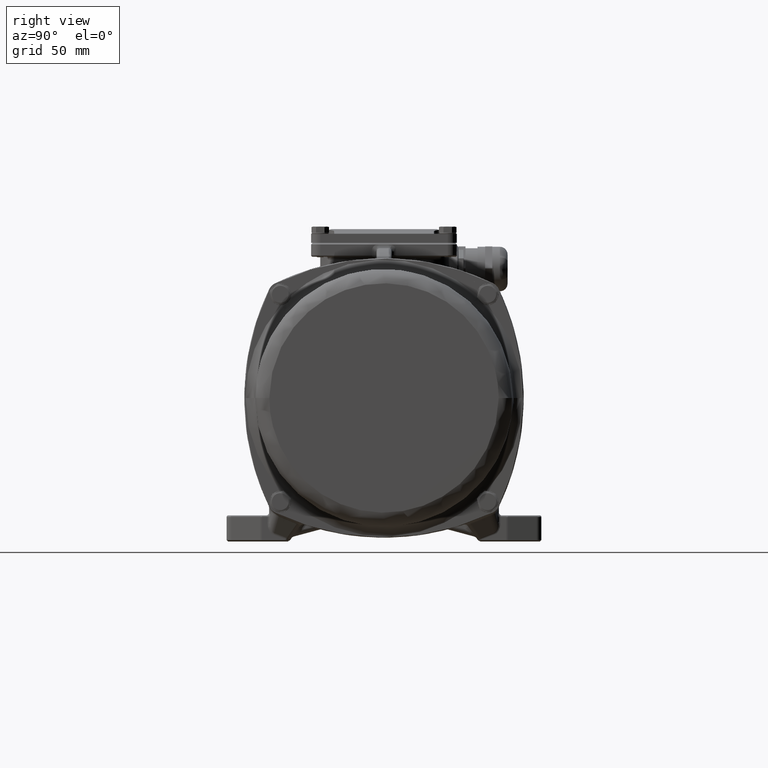
[diagram: clean part render]
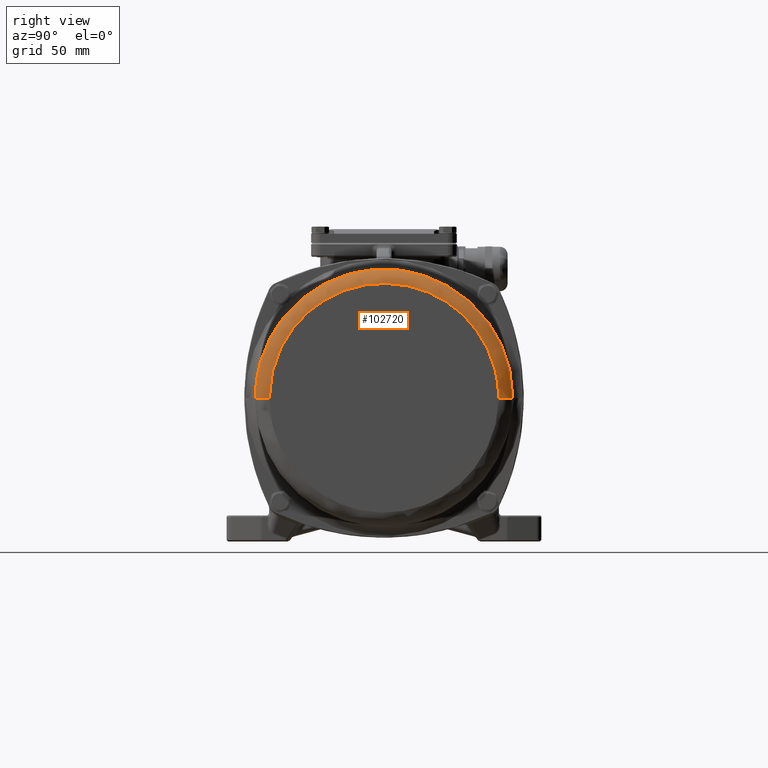
[diagram: same view with one face highlighted and labeled with its STEP entity id]
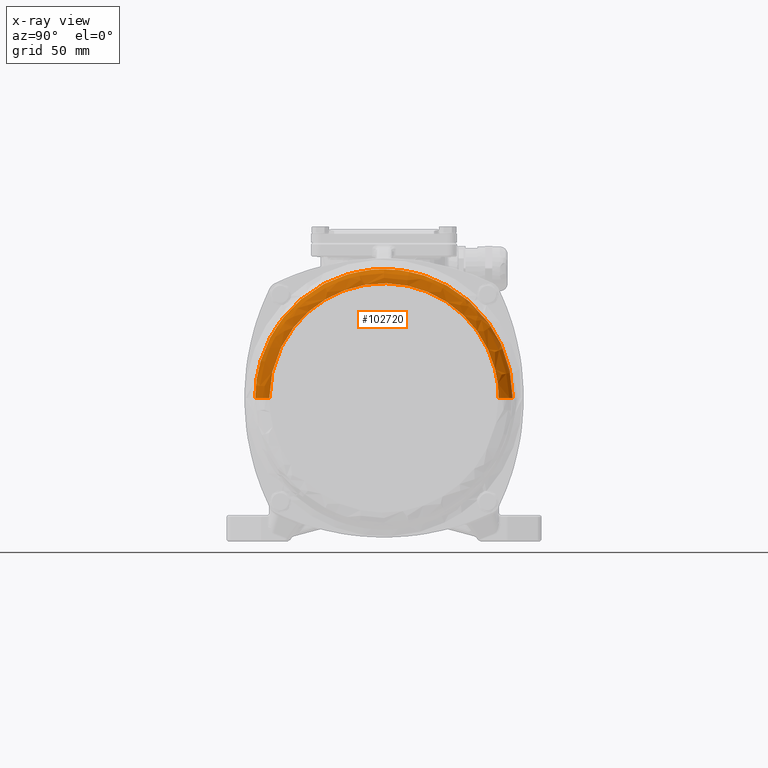
[diagram: x-ray of the same camera — body ghosted, the highlighted face saturated]
A machine part, right view. The second image highlights one B-rep face of the part: STEP entity #102720.
The next image is the same camera in x-ray: the body ghosted, the highlighted face saturated — about 0% of this face is hidden behind the body in this view.
In plain terms, the highlighted face is a freeform B-spline surface patch.
Its self-contained STEP definition (entity closure, byte-faithful):
#36242 = B_SPLINE_CURVE_WITH_KNOTS ( 'NONE', 3,
 ( #104600, #104643, #104645, #104648, #104651, #104653, #104655, #104657, #104659, #104662, #104664, #104667, #104669, #104671, #104674, #104677, #104679, #104682, #104683, #104686, #104689, #104691, #104694, #104697, #104698, #104701, #104703 ),
 .UNSPECIFIED., .F., .F.,
 ( 4, 1, 1, 1, 1, 1, 1, 1, 1, 1, 1, 1, 1, 1, 1, 1, 1, 1, 1, 1, 1, 1, 1, 1, 4 ),
 ( 0.0000000000000000000, 0.03126884422834069800, 0.06253768845668139500, 0.09380653268502210700, 0.1250753769133627900, 0.1875377359283236200, 0.2500000949432844600, 0.2812689391716251500, 0.3125377833999658500, 0.3438066276283065500, 0.3750754718566472500, 0.4375378308716088600, 0.5000001898865673600, 0.5624625489015296900, 0.6249249079164921300, 0.6561937521448328900, 0.6874625963731735300, 0.7187314406015142800, 0.7500002848298550400, 0.8124626438448133700, 0.8749250028597758100, 0.9061938470881165700, 0.9374626913164573200, 0.9687315355447979600, 1.000000000000000000 ),
 .UNSPECIFIED. ) ;
#36304 = B_SPLINE_CURVE_WITH_KNOTS ( 'NONE', 3,
 ( #107411, #107431, #107434, #107438, #107441, #107445, #107449, #107453, #107457, #107461, #107464 ),
 .UNSPECIFIED., .F., .F.,
 ( 4, 1, 1, 1, 1, 1, 1, 1, 4 ),
 ( 0.0000000000000000000, 1.803515344673401800, 3.607030689346700100, 5.410546034020072200, 7.214061378693431300, 9.017576723366771000, 10.82109206804012100, 12.62460741271345000, 14.42812275738680100 ),
 .UNSPECIFIED. ) ;
#36305 = B_SPLINE_CURVE_WITH_KNOTS ( 'NONE', 3,
 ( #107389, #107475, #107479, #107483, #107486, #107489, #107493, #107497, #107501, #107505, #107508, #107512, #107516, #107520, #107524, #107528, #107531, #107535, #107539, #107543, #107547, #107551, #107554, #107558, #107562, #107566, #107570 ),
 .UNSPECIFIED., .F., .F.,
 ( 4, 1, 1, 1, 1, 1, 1, 1, 1, 1, 1, 1, 1, 1, 1, 1, 1, 1, 1, 1, 1, 1, 1, 1, 4 ),
 ( 0.0000000000000000000, 0.03126846445520033200, 0.06253730868354102900, 0.09380615291188182400, 0.1250749971402226300, 0.1875373561551851000, 0.2499997151701436600, 0.2812685593984844400, 0.3125374036268252500, 0.3438062478551659500, 0.3750750920835067600, 0.4375374510984692500, 0.4999998101134317500, 0.5624621691283904200, 0.6249245281433520900, 0.6561933723716928400, 0.6874622166000335900, 0.7187310608283742400, 0.7499999050567151000, 0.8124622640716761000, 0.8749246230866369900, 0.9061934673149777400, 0.9374623115433184900, 0.9687311557716592500, 1.000000000000000000 ),
 .UNSPECIFIED. ) ;
#36310 = B_SPLINE_CURVE_WITH_KNOTS ( 'NONE', 3,
 ( #107980, #108017, #108019, #108023, #108026, #108029, #108033, #108036, #108038, #108042, #108046 ),
 .UNSPECIFIED., .F., .F.,
 ( 4, 1, 1, 1, 1, 1, 1, 1, 4 ),
 ( 0.0000000000000000000, 1.803515344673350100, 3.607030689346679700, 5.410546034020028600, 7.214061378693369200, 9.017576723366728300, 10.82109206804010000, 12.62460741271339900, 14.42812275738680100 ),
 .UNSPECIFIED. ) ;
#46836 = CARTESIAN_POINT ( 'NONE',  ( 174.7999849319460000, 83.89999998929418700, -68.99999998669859700 ) ) ;
#46914 = CARTESIAN_POINT ( 'NONE',  ( 174.7999849319460000, -83.90000001070589500, -69.00000001330140300 ) ) ;
#48359 = CARTESIAN_POINT ( 'NONE',  ( 183.9999847412110200, -74.70000020144070200, -69.00000001184281500 ) ) ;
#48360 = CARTESIAN_POINT ( 'NONE',  ( 183.9999847412110200, 74.70000018002899400, -68.99999998815719900 ) ) ;
#61262 = FACE_OUTER_BOUND ( 'NONE', #211268, .T. ) ;
#102720 = ADVANCED_FACE ( 'NONE', ( #61262 ), #193420, .T. ) ;
#104600 = CARTESIAN_POINT ( 'NONE',  ( 174.7999849319460000, 83.89999998929418700, -68.99999998669859700 ) ) ;
#104643 = CARTESIAN_POINT ( 'NONE',  ( 174.7999849319460000, 83.89999998885899400, -66.25548036223979400 ) ) ;
#104645 = CARTESIAN_POINT ( 'NONE',  ( 174.7999849319460000, 83.63021214230180100, -60.76259641010410200 ) ) ;
#104648 = CARTESIAN_POINT ( 'NONE',  ( 174.7999849319460000, 82.42024701555959600, -52.60584484023790700 ) ) ;
#104651 = CARTESIAN_POINT ( 'NONE',  ( 174.7999849319460000, 80.41610255475271200, -44.60551926830329700 ) ) ;
#104653 = CARTESIAN_POINT ( 'NONE',  ( 174.7999849319460000, 76.71565098065210000, -34.26135087482389700 ) ) ;
#104655 = CARTESIAN_POINT ( 'NONE',  ( 174.7999849319460000, 70.21103537842030600, -22.08644999096029700 ) ) ;
#104657 = CARTESIAN_POINT ( 'NONE',  ( 174.7999849319460000, 61.45214947210530500, -11.41787163159760100 ) ) ;
#104659 = CARTESIAN_POINT ( 'NONE',  ( 174.7999849319460000, 53.31137346714750400, -4.040528047517639700 ) ) ;
#104662 = CARTESIAN_POINT ( 'NONE',  ( 174.7999849319460000, 46.68731989779310300, 0.8725516386980409800 ) ) ;
#104664 = CARTESIAN_POINT ( 'NONE',  ( 174.7999849319460000, 39.61324621258550100, 5.112228539553821200 ) ) ;
#104667 = CARTESIAN_POINT ( 'NONE',  ( 174.7999849319460000, 29.68240998722100300, 9.810153936722098700 ) ) ;
#104669 = CARTESIAN_POINT ( 'NONE',  ( 174.7999849319460000, 16.47189252303539700, 13.81939745304269900 ) ) ;
#104671 = CARTESIAN_POINT ( 'NONE',  ( 174.7999849319460000, -5.034608625997799700E-005, 15.44030618296869900 ) ) ;
#104674 = CARTESIAN_POINT ( 'NONE',  ( 174.7999849319460000, -16.47199128272900000, 13.81937781499310000 ) ) ;
#104677 = CARTESIAN_POINT ( 'NONE',  ( 174.7999849319460000, -29.68250396703640000, 9.810118548935639300 ) ) ;
#104679 = CARTESIAN_POINT ( 'NONE',  ( 174.7999849319460000, -39.61333459146990100, 5.112181312106860000 ) ) ;
#104682 = CARTESIAN_POINT ( 'NONE',  ( 174.7999849319460000, -46.68740322207810300, 0.8724959774573670700 ) ) ;
#104683 = CARTESIAN_POINT ( 'NONE',  ( 174.7999849319460000, -53.31145093399440100, -4.040591606032069900 ) ) ;
#104686 = CARTESIAN_POINT ( 'NONE',  ( 174.7999849319460000, -61.45221814358770000, -11.41794489563910100 ) ) ;
#104689 = CARTESIAN_POINT ( 'NONE',  ( 174.7999849319460000, -70.21109133068739500, -22.08653369744450100 ) ) ;
#104691 = CARTESIAN_POINT ( 'NONE',  ( 174.7999849319460000, -76.71569241784968100, -34.26144233618139600 ) ) ;
#104694 = CARTESIAN_POINT ( 'NONE',  ( 174.7999849319460000, -80.41613165950408900, -44.60561514137680200 ) ) ;
#104697 = CARTESIAN_POINT ( 'NONE',  ( 174.7999849319460000, -82.42026658222410200, -52.60594310267119100 ) ) ;
#104698 = CARTESIAN_POINT ( 'NONE',  ( 174.7999849319460000, -83.63021708591610100, -60.76266309267897700 ) ) ;
#104701 = CARTESIAN_POINT ( 'NONE',  ( 174.7999849319460000, -83.90000000563486500, -66.25551367547728900 ) ) ;
#104703 = CARTESIAN_POINT ( 'NONE',  ( 174.7999849319460000, -83.90000001070589500, -69.00000001330140300 ) ) ;
#107389 = CARTESIAN_POINT ( 'NONE',  ( 183.9999847412110200, -74.70000020144070200, -69.00000001184281500 ) ) ;
#107411 = CARTESIAN_POINT ( 'NONE',  ( 174.7999849319460000, 83.89999998929418700, -68.99999998669859700 ) ) ;
#107431 = CARTESIAN_POINT ( 'NONE',  ( 175.4011567135040100, 83.89999998929408800, -68.99999998669859700 ) ) ;
#107434 = CARTESIAN_POINT ( 'NONE',  ( 176.6068320595450100, 83.78139020287639500, -68.99999998671739800 ) ) ;
#107438 = CARTESIAN_POINT ( 'NONE',  ( 178.3432478650399800, 83.25448174200398900, -68.99999998680100100 ) ) ;
#107441 = CARTESIAN_POINT ( 'NONE',  ( 179.9442111005760100, 82.39883304660820300, -68.99999998693660100 ) ) ;
#107445 = CARTESIAN_POINT ( 'NONE',  ( 181.3472935512130000, 81.24730879929610700, -68.99999998711919600 ) ) ;
#107449 = CARTESIAN_POINT ( 'NONE',  ( 182.4988177985250100, 79.84422634865920500, -68.99999998734161000 ) ) ;
#107453 = CARTESIAN_POINT ( 'NONE',  ( 183.3544664939210000, 78.24326311312340500, -68.99999998759550100 ) ) ;
#107457 = CARTESIAN_POINT ( 'NONE',  ( 183.8813749547930200, 76.50684730762779400, -68.99999998787069400 ) ) ;
#107461 = CARTESIAN_POINT ( 'NONE',  ( 183.9999847412110200, 75.30117196158681700, -68.99999998806190100 ) ) ;
#107464 = CARTESIAN_POINT ( 'NONE',  ( 183.9999847412110200, 74.70000018002899400, -68.99999998815719900 ) ) ;
#107475 = CARTESIAN_POINT ( 'NONE',  ( 183.9999847412110200, -74.70000019692574300, -66.55645853438211600 ) ) ;
#107479 = CARTESIAN_POINT ( 'NONE',  ( 183.9999847412110200, -74.45980014740911200, -61.66592290169204200 ) ) ;
#107483 = CARTESIAN_POINT ( 'NONE',  ( 183.9999847412110200, -73.38252597748569900, -54.40362272518019900 ) ) ;
#107486 = CARTESIAN_POINT ( 'NONE',  ( 183.9999847412110200, -71.59815316330880800, -47.28056551141820300 ) ) ;
#107489 = CARTESIAN_POINT ( 'NONE',  ( 183.9999847412110200, -68.30348317454381400, -38.07067623226340200 ) ) ;
#107493 = CARTESIAN_POINT ( 'NONE',  ( 183.9999847412110200, -62.51213987952980500, -27.23079926401749900 ) ) ;
#107497 = CARTESIAN_POINT ( 'NONE',  ( 183.9999847412110200, -54.71371522223569900, -17.73206761288840000 ) ) ;
#107501 = CARTESIAN_POINT ( 'NONE',  ( 183.9999847412110200, -47.46561853440080400, -11.16367318927979800 ) ) ;
#107505 = CARTESIAN_POINT ( 'NONE',  ( 183.9999847412110200, -41.56792645640820200, -6.789327022131280900 ) ) ;
#107508 = CARTESIAN_POINT ( 'NONE',  ( 183.9999847412110200, -35.26956021021380400, -3.014541619187590000 ) ) ;
#107512 = CARTESIAN_POINT ( 'NONE',  ( 183.9999847412110200, -26.42768834442909700, 1.168246372316190000 ) ) ;
#107516 = CARTESIAN_POINT ( 'NONE',  ( 183.9999847412110200, -14.66576581716490100, 4.737872927014610300 ) ) ;
#107520 = CARTESIAN_POINT ( 'NONE',  ( 183.9999847412110200, -4.482659293625349600E-005, 6.181059451412090200 ) ) ;
#107524 = CARTESIAN_POINT ( 'NONE',  ( 183.9999847412110200, 14.66567788455319900, 4.737890411666679600 ) ) ;
#107528 = CARTESIAN_POINT ( 'NONE',  ( 183.9999847412110200, 26.42760466756120200, 1.168277879678020000 ) ) ;
#107531 = CARTESIAN_POINT ( 'NONE',  ( 183.9999847412110200, 35.26948152011039600, -3.014499570435579900 ) ) ;
#107535 = CARTESIAN_POINT ( 'NONE',  ( 183.9999847412110200, 41.56785226664539600, -6.789277464387669900 ) ) ;
#107539 = CARTESIAN_POINT ( 'NONE',  ( 183.9999847412110200, 47.46554955978260200, -11.16361660023280000 ) ) ;
#107543 = CARTESIAN_POINT ( 'NONE',  ( 183.9999847412110200, 54.71365407853200200, -17.73200238256760000 ) ) ;
#107547 = CARTESIAN_POINT ( 'NONE',  ( 183.9999847412110200, 62.51209006032421200, -27.23072473631329900 ) ) ;
#107551 = CARTESIAN_POINT ( 'NONE',  ( 183.9999847412110200, 68.30344627876721100, -38.07059480004139800 ) ) ;
#107554 = CARTESIAN_POINT ( 'NONE',  ( 183.9999847412110200, 71.59812724767209600, -47.28048015124409900 ) ) ;
#107558 = CARTESIAN_POINT ( 'NONE',  ( 183.9999847412110200, 73.38250855404309900, -54.40353523764999700 ) ) ;
#107562 = CARTESIAN_POINT ( 'NONE',  ( 183.9999847412110200, 74.45979574353570700, -61.66586353115150100 ) ) ;
#107566 = CARTESIAN_POINT ( 'NONE',  ( 183.9999847412110200, 74.70000017964159200, -66.55642887408630800 ) ) ;
#107570 = CARTESIAN_POINT ( 'NONE',  ( 183.9999847412110200, 74.70000018002899400, -68.99999998815719900 ) ) ;
#107980 = CARTESIAN_POINT ( 'NONE',  ( 183.9999847412110200, -74.70000020144070200, -69.00000001184281500 ) ) ;
#108017 = CARTESIAN_POINT ( 'NONE',  ( 183.9999847412110200, -75.30117198299849700, -69.00000001193811300 ) ) ;
#108019 = CARTESIAN_POINT ( 'NONE',  ( 183.8813749547930200, -76.50684732903950200, -69.00000001212920600 ) ) ;
#108023 = CARTESIAN_POINT ( 'NONE',  ( 183.3544664939210000, -78.24326313453509800, -69.00000001240461200 ) ) ;
#108026 = CARTESIAN_POINT ( 'NONE',  ( 182.4988177985250100, -79.84422637007089900, -69.00000001265830500 ) ) ;
#108029 = CARTESIAN_POINT ( 'NONE',  ( 181.3472935512130000, -81.24730882070780100, -69.00000001288080400 ) ) ;
#108033 = CARTESIAN_POINT ( 'NONE',  ( 179.9442111005760100, -82.39883306801989700, -69.00000001306339900 ) ) ;
#108036 = CARTESIAN_POINT ( 'NONE',  ( 178.3432478650399800, -83.25448176341559800, -69.00000001319899900 ) ) ;
#108038 = CARTESIAN_POINT ( 'NONE',  ( 176.6068320595450100, -83.78139022428800300, -69.00000001328250200 ) ) ;
#108042 = CARTESIAN_POINT ( 'NONE',  ( 175.4011567135040100, -83.90000001070579600, -69.00000001330130300 ) ) ;
#108046 = CARTESIAN_POINT ( 'NONE',  ( 174.7999849319460000, -83.90000001070589500, -69.00000001330140300 ) ) ;
#136558 = VERTEX_POINT ( 'NONE', #46836 ) ;
#136601 = VERTEX_POINT ( 'NONE', #46914 ) ;
#155433 = VERTEX_POINT ( 'NONE', #48359 ) ;
#155436 = VERTEX_POINT ( 'NONE', #48360 ) ;
#193420 = B_SPLINE_SURFACE_WITH_KNOTS ( 'NONE', 3, 3, ( 
 ( #202948, #202840, #202936, #202951, #202953, #202955, #202957, #202959, #202961, #202963, #202965, #202967, #202969, #202971, #202973, #202975, #202977, #202979, #202981, #202983, #202985, #202987, #202989, #202991, #202993, #202995, #202997 ),
 ( #202999, #203001, #203003, #203005, #203007, #203009, #203011, #203013, #203015, #203017, #203019, #203021, #203022, #203024, #203026, #203028, #203030, #203032, #203034, #203036, #203038, #203040, #203042, #203044, #203046, #203048, #203050 ),
 ( #203052, #203054, #203056, #203058, #203060, #203062, #203064, #203066, #203068, #203070, #203072, #203074, #203076, #203078, #203080, #203082, #203084, #203086, #203088, #203090, #203092, #203094, #203096, #203097, #203099, #203101, #203103 ),
 ( #203105, #203107, #203109, #203111, #203113, #203115, #203117, #203119, #203121, #203123, #203125, #203127, #203129, #203131, #203133, #203135, #203137, #203139, #203141, #203143, #203145, #203147, #203149, #203151, #203153, #203155, #203157 ),
 ( #203159, #203161, #203163, #203165, #203167, #203169, #203171, #203173, #203175, #203177, #203179, #203181, #203183, #203185, #203187, #203189, #203191, #203193, #203195, #203197, #203199, #203201, #203203, #203205, #203207, #203209, #203211 ),
 ( #203213, #203215, #203217, #203219, #203221, #203223, #203225, #203227, #203229, #203231, #203233, #203235, #203237, #203239, #203241, #203243, #203245, #203247, #203249, #203251, #203253, #203255, #203257, #203259, #203261, #203263, #203265 ),
 ( #203267, #203269, #203271, #203273, #203275, #203277, #203279, #203281, #203283, #203285, #203287, #203289, #203291, #203293, #203295, #203297, #203299, #203301, #203303, #203305, #203307, #203309, #203311, #203313, #203315, #203317, #203319 ),
 ( #203321, #203323, #203325, #203327, #203329, #203331, #203333, #203335, #203337, #203339, #203341, #203343, #203345, #203346, #203348, #203350, #203352, #203353, #203355, #203357, #203359, #203361, #203363, #203365, #203367, #203369, #203371 ),
 ( #203373, #203375, #203377, #203379, #203381, #203383, #203385, #203387, #203389, #203391, #203393, #203395, #203397, #203399, #203401, #203403, #203405, #203407, #203409, #203411, #203413, #203415, #203417, #203419, #203421, #203423, #203425 ),
 ( #203427, #203429, #203430, #203431, #203433, #203435, #203437, #203439, #203441, #203443, #203445, #203447, #203449, #203451, #203453, #203455, #203457, #203459, #203461, #203463, #203465, #203467, #203469, #203471, #203473, #203475, #203477 ),
 ( #203479, #203481, #203483, #203485, #203487, #203489, #203491, #203493, #203495, #203497, #203499, #203501, #203503, #203505, #203507, #203509, #203511, #203512, #203514, #203516, #203518, #203520, #203522, #203524, #203526, #203528, #203530 ) ),
 .UNSPECIFIED., .F., .F., .F.,
 ( 4, 1, 1, 1, 1, 1, 1, 1, 4 ),
 ( 4, 1, 1, 1, 1, 1, 1, 1, 1, 1, 1, 1, 1, 1, 1, 1, 1, 1, 1, 1, 1, 1, 1, 1, 4 ),
 ( 0.0000000000000000000, 1.803515344673340100, 3.607030689346679700, 5.410546034020029500, 7.214061378693359400, 9.017576723366719400, 10.82109206804010000, 12.62460741271339900, 14.42812275738669900 ),
 ( 0.0000000000000000000, 7.890135011254999500, 15.78027002250999900, 23.67040503376500000, 31.56054004501999800, 47.32180202677359700, 63.08306400852720200, 70.97319901978220000, 78.86333403103719800, 86.75346904229219500, 94.64360405354719300, 110.4048660353010000, 126.1661280170540100, 141.9273899988080000, 157.6886519805619900, 165.5787869918170000, 173.4689220030719800, 181.3590570143269900, 189.2491920255820000, 205.0104540073350000, 220.7717159890889900, 228.6618510003440000, 236.5519860115990100, 244.4421210228540000, 252.3322560341090100 ),
 .UNSPECIFIED. ) ;
#202840 = CARTESIAN_POINT ( 'NONE',  ( 183.9999847412110200, 74.70000017964159200, -66.55642887408630800 ) ) ;
#202936 = CARTESIAN_POINT ( 'NONE',  ( 183.9999847412110200, 74.45979574353570700, -61.66586353115150100 ) ) ;
#202948 = CARTESIAN_POINT ( 'NONE',  ( 183.9999847412110200, 74.70000018002899400, -68.99999998815719900 ) ) ;
#202951 = CARTESIAN_POINT ( 'NONE',  ( 183.9999847412110200, 73.38250855404309900, -54.40353523764999700 ) ) ;
#202953 = CARTESIAN_POINT ( 'NONE',  ( 183.9999847412110200, 71.59812724767209600, -47.28048015124409900 ) ) ;
#202955 = CARTESIAN_POINT ( 'NONE',  ( 183.9999847412110200, 68.30344627876721100, -38.07059480004139800 ) ) ;
#202957 = CARTESIAN_POINT ( 'NONE',  ( 183.9999847412110200, 62.51209006032421200, -27.23072473631329900 ) ) ;
#202959 = CARTESIAN_POINT ( 'NONE',  ( 183.9999847412110200, 54.71365407853200200, -17.73200238256760000 ) ) ;
#202961 = CARTESIAN_POINT ( 'NONE',  ( 183.9999847412110200, 47.46554955978260200, -11.16361660023280000 ) ) ;
#202963 = CARTESIAN_POINT ( 'NONE',  ( 183.9999847412110200, 41.56785226664539600, -6.789277464387669900 ) ) ;
#202965 = CARTESIAN_POINT ( 'NONE',  ( 183.9999847412110200, 35.26948152011039600, -3.014499570435579900 ) ) ;
#202967 = CARTESIAN_POINT ( 'NONE',  ( 183.9999847412110200, 26.42760466756120200, 1.168277879678020000 ) ) ;
#202969 = CARTESIAN_POINT ( 'NONE',  ( 183.9999847412110200, 14.66567788455319900, 4.737890411666679600 ) ) ;
#202971 = CARTESIAN_POINT ( 'NONE',  ( 183.9999847412110200, -4.482659293625349600E-005, 6.181059451412090200 ) ) ;
#202973 = CARTESIAN_POINT ( 'NONE',  ( 183.9999847412110200, -14.66576581716490100, 4.737872927014610300 ) ) ;
#202975 = CARTESIAN_POINT ( 'NONE',  ( 183.9999847412110200, -26.42768834442909700, 1.168246372316190000 ) ) ;
#202977 = CARTESIAN_POINT ( 'NONE',  ( 183.9999847412110200, -35.26956021021380400, -3.014541619187590000 ) ) ;
#202979 = CARTESIAN_POINT ( 'NONE',  ( 183.9999847412110200, -41.56792645640820200, -6.789327022131280900 ) ) ;
#202981 = CARTESIAN_POINT ( 'NONE',  ( 183.9999847412110200, -47.46561853440080400, -11.16367318927979800 ) ) ;
#202983 = CARTESIAN_POINT ( 'NONE',  ( 183.9999847412110200, -54.71371522223569900, -17.73206761288840000 ) ) ;
#202985 = CARTESIAN_POINT ( 'NONE',  ( 183.9999847412110200, -62.51213987952980500, -27.23079926401749900 ) ) ;
#202987 = CARTESIAN_POINT ( 'NONE',  ( 183.9999847412110200, -68.30348317454381400, -38.07067623226340200 ) ) ;
#202989 = CARTESIAN_POINT ( 'NONE',  ( 183.9999847412110200, -71.59815316330880800, -47.28056551141820300 ) ) ;
#202991 = CARTESIAN_POINT ( 'NONE',  ( 183.9999847412110200, -73.38252597748569900, -54.40362272518019900 ) ) ;
#202993 = CARTESIAN_POINT ( 'NONE',  ( 183.9999847412110200, -74.45980450874130000, -61.66595230303149600 ) ) ;
#202995 = CARTESIAN_POINT ( 'NONE',  ( 183.9999847412110200, -74.70000311425549500, -66.55651793233740000 ) ) ;
#202997 = CARTESIAN_POINT ( 'NONE',  ( 183.9999847412110200, -74.70000020138769500, -69.00008904640660000 ) ) ;
#202999 = CARTESIAN_POINT ( 'NONE',  ( 183.9999847412110200, 75.30117196158681700, -68.99999998806190100 ) ) ;
#203001 = CARTESIAN_POINT ( 'NONE',  ( 183.9999847412110200, 75.30117196119630300, -66.53676346574120300 ) ) ;
#203003 = CARTESIAN_POINT ( 'NONE',  ( 183.9999847412110200, 75.05903440422801500, -61.60683975771239300 ) ) ;
#203005 = CARTESIAN_POINT ( 'NONE',  ( 183.9999847412110200, 73.97307740673940700, -54.28606558968179700 ) ) ;
#203007 = CARTESIAN_POINT ( 'NONE',  ( 183.9999847412110200, 72.17433572973659800, -47.10568547375129400 ) ) ;
#203009 = CARTESIAN_POINT ( 'NONE',  ( 183.9999847412110200, 68.85313977793099100, -37.82168066912969800 ) ) ;
#203011 = CARTESIAN_POINT ( 'NONE',  ( 183.9999847412110200, 63.01517579607979500, -26.89457333657389900 ) ) ;
#203013 = CARTESIAN_POINT ( 'NONE',  ( 183.9999847412110200, 55.15397944426669600, -17.31940702264960000 ) ) ;
#203015 = CARTESIAN_POINT ( 'NONE',  ( 183.9999847412110200, 47.84754352129599700, -10.69816008673190000 ) ) ;
#203017 = CARTESIAN_POINT ( 'NONE',  ( 183.9999847412110200, 41.90238265145529800, -6.288617078802170500 ) ) ;
#203019 = CARTESIAN_POINT ( 'NONE',  ( 183.9999847412110200, 35.55332378239110400, -2.483460470717570300 ) ) ;
#203021 = CARTESIAN_POINT ( 'NONE',  ( 183.9999847412110200, 26.64028914073619700, 1.732979198473990000 ) ) ;
#203022 = CARTESIAN_POINT ( 'NONE',  ( 183.9999847412110200, 14.78370454701019900, 5.331319311718969400 ) ) ;
#203024 = CARTESIAN_POINT ( 'NONE',  ( 183.9999847412110200, -4.518726290214659900E-005, 6.786102708900769700 ) ) ;
#203026 = CARTESIAN_POINT ( 'NONE',  ( 183.9999847412110200, -14.78379318711490100, 5.331301686353660000 ) ) ;
#203028 = CARTESIAN_POINT ( 'NONE',  ( 183.9999847412110200, -26.64037349084770100, 1.732947437546740000 ) ) ;
#203030 = CARTESIAN_POINT ( 'NONE',  ( 183.9999847412110200, -35.55340310560550400, -2.483502857870159900 ) ) ;
#203032 = CARTESIAN_POINT ( 'NONE',  ( 183.9999847412110200, -41.90245743811120600, -6.288667035377320000 ) ) ;
#203034 = CARTESIAN_POINT ( 'NONE',  ( 183.9999847412110200, -47.84761305083689100, -10.69821713119700100 ) ) ;
#203036 = CARTESIAN_POINT ( 'NONE',  ( 183.9999847412110200, -55.15404107987119900, -17.31947277793190300 ) ) ;
#203038 = CARTESIAN_POINT ( 'NONE',  ( 183.9999847412110200, -63.01522601604879300, -26.89464846406329800 ) ) ;
#203040 = CARTESIAN_POINT ( 'NONE',  ( 183.9999847412110200, -68.85317697046559700, -37.82176275670309500 ) ) ;
#203042 = CARTESIAN_POINT ( 'NONE',  ( 183.9999847412110200, -72.17436185376530500, -47.10577152088829700 ) ) ;
#203044 = CARTESIAN_POINT ( 'NONE',  ( 183.9999847412110200, -73.97309497023019300, -54.28615378129549600 ) ) ;
#203046 = CARTESIAN_POINT ( 'NONE',  ( 183.9999847412110200, -75.05904323980199400, -61.60692924401200100 ) ) ;
#203048 = CARTESIAN_POINT ( 'NONE',  ( 183.9999847412110200, -75.30117491925500400, -66.53685324071659600 ) ) ;
#203050 = CARTESIAN_POINT ( 'NONE',  ( 183.9999847412110200, -75.30117198294500700, -69.00008976303560400 ) ) ;
#203052 = CARTESIAN_POINT ( 'NONE',  ( 183.8813749547930200, 76.50684730762789300, -68.99999998787069400 ) ) ;
#203054 = CARTESIAN_POINT ( 'NONE',  ( 183.8813749547930200, 76.50684730723109800, -66.49732366044951000 ) ) ;
#203056 = CARTESIAN_POINT ( 'NONE',  ( 183.8813749547930200, 76.26083279489620300, -61.48846509235210100 ) ) ;
#203058 = CARTESIAN_POINT ( 'NONE',  ( 183.8813749547930200, 75.15748813205749500, -54.05047525958290300 ) ) ;
#203060 = CARTESIAN_POINT ( 'NONE',  ( 183.8813749547930200, 73.32994612649329700, -46.75512738081109600 ) ) ;
#203062 = CARTESIAN_POINT ( 'NONE',  ( 183.8813749547930200, 69.95557325892949100, -37.32247288837879800 ) ) ;
#203064 = CARTESIAN_POINT ( 'NONE',  ( 183.8813749547930200, 64.02413544314400400, -26.22040753632159800 ) ) ;
#203066 = CARTESIAN_POINT ( 'NONE',  ( 183.8813749547930200, 56.03707052403610300, -16.49192963830690000 ) ) ;
#203068 = CARTESIAN_POINT ( 'NONE',  ( 183.8813749547930200, 48.61364851135370200, -9.764667430892119500 ) ) ;
#203070 = CARTESIAN_POINT ( 'NONE',  ( 183.8813749547930200, 42.57329743794409900, -5.284521573727529300 ) ) ;
#203072 = CARTESIAN_POINT ( 'NONE',  ( 183.8813749547930200, 36.12258140274959600, -1.418439174051250100 ) ) ;
#203074 = CARTESIAN_POINT ( 'NONE',  ( 183.8813749547930200, 27.06683681589220200, 2.865511494292940100 ) ) ;
#203076 = CARTESIAN_POINT ( 'NONE',  ( 183.8813749547930200, 15.02041199314330000, 6.521465982554650200 ) ) ;
#203078 = CARTESIAN_POINT ( 'NONE',  ( 183.8813749547930200, -4.591060172387529500E-005, 7.999542463095849600 ) ) ;
#203080 = CARTESIAN_POINT ( 'NONE',  ( 183.8813749547930200, -15.02050205215530100, 6.521448074982989100 ) ) ;
#203082 = CARTESIAN_POINT ( 'NONE',  ( 183.8813749547930200, -27.06692251622219900, 2.865479224829560000 ) ) ;
#203084 = CARTESIAN_POINT ( 'NONE',  ( 183.8813749547930200, -36.12266199569499700, -1.418482239880470000 ) ) ;
#203086 = CARTESIAN_POINT ( 'NONE',  ( 183.8813749547930200, -42.57337342169440600, -5.284572330176169800 ) ) ;
#203088 = CARTESIAN_POINT ( 'NONE',  ( 183.8813749547930200, -48.61371915381530300, -9.764725388717620200 ) ) ;
#203090 = CARTESIAN_POINT ( 'NONE',  ( 183.8813749547930200, -56.03713314616859300, -16.49199644642170200 ) ) ;
#203092 = CARTESIAN_POINT ( 'NONE',  ( 183.8813749547930200, -64.02418646686101100, -26.22048386670550000 ) ) ;
#203094 = CARTESIAN_POINT ( 'NONE',  ( 183.8813749547930200, -69.95561104662489500, -37.32255629028730200 ) ) ;
#203096 = CARTESIAN_POINT ( 'NONE',  ( 183.8813749547930200, -73.32997266846081200, -46.75521480568109900 ) ) ;
#203097 = CARTESIAN_POINT ( 'NONE',  ( 183.8813749547930200, -75.15750597642110600, -54.05056486326569900 ) ) ;
#203099 = CARTESIAN_POINT ( 'NONE',  ( 183.8813749547930200, -76.26084177159710000, -61.48855601145040600 ) ) ;
#203101 = CARTESIAN_POINT ( 'NONE',  ( 183.8813749547930200, -76.50685031230969500, -66.49741487284579500 ) ) ;
#203103 = CARTESIAN_POINT ( 'NONE',  ( 183.8813749547930200, -76.50684732898530200, -69.00009120026530200 ) ) ;
#203105 = CARTESIAN_POINT ( 'NONE',  ( 183.3544664939210000, 78.24326311312329100, -68.99999998759540200 ) ) ;
#203107 = CARTESIAN_POINT ( 'NONE',  ( 183.3544664939210000, 78.24326311271759900, -66.44052238181419100 ) ) ;
#203109 = CARTESIAN_POINT ( 'NONE',  ( 183.3544664939210000, 77.99166500227909200, -61.31798168603810200 ) ) ;
#203111 = CARTESIAN_POINT ( 'NONE',  ( 183.3544664939210000, 76.86327859247759900, -53.71117764173839500 ) ) ;
#203113 = CARTESIAN_POINT ( 'NONE',  ( 183.3544664939210000, 74.99425830183301400, -46.25025298379829800 ) ) ;
#203115 = CARTESIAN_POINT ( 'NONE',  ( 183.3544664939210000, 71.54329994439159200, -36.60351294317600000 ) ) ;
#203117 = CARTESIAN_POINT ( 'NONE',  ( 183.3544664939210000, 65.47724094457279900, -25.24947273623100200 ) ) ;
#203119 = CARTESIAN_POINT ( 'NONE',  ( 183.3544664939210000, 57.30889988808410600, -15.30019521860530100 ) ) ;
#203121 = CARTESIAN_POINT ( 'NONE',  ( 183.3544664939210000, 49.71699429823830500, -8.420249626184968900 ) ) ;
#203123 = CARTESIAN_POINT ( 'NONE',  ( 183.3544664939210000, 43.53955012215559600, -3.838421418355249900 ) ) ;
#203125 = CARTESIAN_POINT ( 'NONE',  ( 183.3544664939210000, 36.94242725315609700, 0.1154064161343720000 ) ) ;
#203127 = CARTESIAN_POINT ( 'NONE',  ( 183.3544664939210000, 27.68115154611379900, 4.496586547085019700 ) ) ;
#203129 = CARTESIAN_POINT ( 'NONE',  ( 183.3544664939210000, 15.36131848351290000, 8.235517362043019300 ) ) ;
#203131 = CARTESIAN_POINT ( 'NONE',  ( 183.3544664939210000, -4.695235559815100300E-005, 9.747140583202920500 ) ) ;
#203133 = CARTESIAN_POINT ( 'NONE',  ( 183.3544664939210000, -15.36141058603750100, 8.235499048037279800 ) ) ;
#203135 = CARTESIAN_POINT ( 'NONE',  ( 183.3544664939210000, -27.68123919103090100, 4.496553545226980500 ) ) ;
#203137 = CARTESIAN_POINT ( 'NONE',  ( 183.3544664939210000, -36.94250967477029900, 0.1153623728738670100 ) ) ;
#203139 = CARTESIAN_POINT ( 'NONE',  ( 183.3544664939210000, -43.53962782996340100, -3.838473326783129900 ) ) ;
#203141 = CARTESIAN_POINT ( 'NONE',  ( 183.3544664939210000, -49.71706654353029400, -8.420308899433701200 ) ) ;
#203143 = CARTESIAN_POINT ( 'NONE',  ( 183.3544664939210000, -57.30896393101600200, -15.30026354301139900 ) ) ;
#203145 = CARTESIAN_POINT ( 'NONE',  ( 183.3544664939210000, -65.47729312584910100, -25.24955079902570200 ) ) ;
#203147 = CARTESIAN_POINT ( 'NONE',  ( 183.3544664939210000, -71.54333858923870100, -36.60359823799199600 ) ) ;
#203149 = CARTESIAN_POINT ( 'NONE',  ( 183.3544664939210000, -74.99428544571669900, -46.25034239288189000 ) ) ;
#203151 = CARTESIAN_POINT ( 'NONE',  ( 183.3544664939210000, -76.86329684135479600, -53.71126927908550600 ) ) ;
#203153 = CARTESIAN_POINT ( 'NONE',  ( 183.3544664939210000, -77.99167418223110800, -61.31807466865580400 ) ) ;
#203155 = CARTESIAN_POINT ( 'NONE',  ( 183.3544664939210000, -78.24326618551410200, -66.44061566438659800 ) ) ;
#203157 = CARTESIAN_POINT ( 'NONE',  ( 183.3544664939210000, -78.24326313447950600, -69.00009327016600500 ) ) ;
#203159 = CARTESIAN_POINT ( 'NONE',  ( 182.4988177985250100, 79.84422634865920500, -68.99999998734161000 ) ) ;
#203161 = CARTESIAN_POINT ( 'NONE',  ( 182.4988177985250100, 79.84422634824510100, -66.38815199993980800 ) ) ;
#203163 = CARTESIAN_POINT ( 'NONE',  ( 182.4988177985250100, 79.58748019938309400, -61.16079717705489600 ) ) ;
#203165 = CARTESIAN_POINT ( 'NONE',  ( 182.4988177985250100, 78.43600547391780300, -53.39834760969489500 ) ) ;
#203167 = CARTESIAN_POINT ( 'NONE',  ( 182.4988177985250100, 76.52874249435240000, -45.78476231870369200 ) ) ;
#203169 = CARTESIAN_POINT ( 'NONE',  ( 182.4988177985250100, 73.00717285055800700, -35.94063689905699700 ) ) ;
#203171 = CARTESIAN_POINT ( 'NONE',  ( 182.4988177985250100, 66.81699406003049500, -24.35427763714940500 ) ) ;
#203173 = CARTESIAN_POINT ( 'NONE',  ( 182.4988177985250100, 58.48151767195339800, -14.20142441357880100 ) ) ;
#203175 = CARTESIAN_POINT ( 'NONE',  ( 182.4988177985250100, 50.73427140162279900, -7.180705807403709800 ) ) ;
#203177 = CARTESIAN_POINT ( 'NONE',  ( 182.4988177985250100, 44.43042834312349500, -2.505127182996049800 ) ) ;
#203179 = CARTESIAN_POINT ( 'NONE',  ( 182.4988177985250100, 37.69831939670459800, 1.529601329071889900 ) ) ;
#203181 = CARTESIAN_POINT ( 'NONE',  ( 182.4988177985250100, 28.24754543346530200, 6.000426344935000600 ) ) ;
#203183 = CARTESIAN_POINT ( 'NONE',  ( 182.4988177985250100, 15.67563188477889800, 9.815860753122331400 ) ) ;
#203185 = CARTESIAN_POINT ( 'NONE',  ( 182.4988177985250100, -4.791284538985250100E-005, 11.35841383464900100 ) ) ;
#203187 = CARTESIAN_POINT ( 'NONE',  ( 182.4988177985250100, -15.67572587140800000, 9.815842064387199500 ) ) ;
#203189 = CARTESIAN_POINT ( 'NONE',  ( 182.4988177985250100, -28.24763487127800200, 6.000392667814219600 ) ) ;
#203191 = CARTESIAN_POINT ( 'NONE',  ( 182.4988177985250100, -37.69840350433870000, 1.529556384626560100 ) ) ;
#203193 = CARTESIAN_POINT ( 'NONE',  ( 182.4988177985250100, -44.43050764050030200, -2.505180153540740300 ) ) ;
#203195 = CARTESIAN_POINT ( 'NONE',  ( 182.4988177985250100, -50.73434512471340000, -7.180766293463469700 ) ) ;
#203197 = CARTESIAN_POINT ( 'NONE',  ( 182.4988177985250100, -58.48158302485239800, -14.20149413599490100 ) ) ;
#203199 = CARTESIAN_POINT ( 'NONE',  ( 182.4988177985250100, -66.81704730856839100, -24.35435729721470100 ) ) ;
#203201 = CARTESIAN_POINT ( 'NONE',  ( 182.4988177985250100, -73.00721228569290100, -35.94072393912049500 ) ) ;
#203203 = CARTESIAN_POINT ( 'NONE',  ( 182.4988177985250100, -76.52877019319871000, -45.78485355721839800 ) ) ;
#203205 = CARTESIAN_POINT ( 'NONE',  ( 182.4988177985250100, -78.43602409575369400, -53.39844112206639400 ) ) ;
#203207 = CARTESIAN_POINT ( 'NONE',  ( 182.4988177985250100, -79.58748956673139200, -61.16089206222299900 ) ) ;
#203209 = CARTESIAN_POINT ( 'NONE',  ( 182.4988177985250100, -79.84422948347709300, -66.38824719120010800 ) ) ;
#203211 = CARTESIAN_POINT ( 'NONE',  ( 182.4988177985250100, -79.84422637001419800, -69.00009517860010500 ) ) ;
#203213 = CARTESIAN_POINT ( 'NONE',  ( 181.3472935512130000, 81.24730879929610700, -68.99999998711919600 ) ) ;
#203215 = CARTESIAN_POINT ( 'NONE',  ( 181.3472935512130000, 81.24730879887479800, -66.34225465382340300 ) ) ;
#203217 = CARTESIAN_POINT ( 'NONE',  ( 181.3472935512130000, 80.98605091469809700, -61.02304084313589500 ) ) ;
#203219 = CARTESIAN_POINT ( 'NONE',  ( 181.3472935512130000, 79.81434161431960200, -53.12418370745800200 ) ) ;
#203221 = CARTESIAN_POINT ( 'NONE',  ( 181.3472935512130000, 77.87356278348490000, -45.37680680252920200 ) ) ;
#203223 = CARTESIAN_POINT ( 'NONE',  ( 181.3472935512130000, 74.29010948458849800, -35.35969304987499800 ) ) ;
#203225 = CARTESIAN_POINT ( 'NONE',  ( 181.3472935512130000, 67.99115224352910000, -23.56972961909509900 ) ) ;
#203227 = CARTESIAN_POINT ( 'NONE',  ( 181.3472935512130000, 59.50919863134850400, -13.23846286668930000 ) ) ;
#203229 = CARTESIAN_POINT ( 'NONE',  ( 181.3472935512130000, 51.62581195640379400, -6.094370943289660200 ) ) ;
#203231 = CARTESIAN_POINT ( 'NONE',  ( 181.3472935512130000, 45.21119305386110200, -1.336629555040399900 ) ) ;
#203233 = CARTESIAN_POINT ( 'NONE',  ( 181.3472935512130000, 38.36078245497230200, 2.769000223487149800 ) ) ;
#203235 = CARTESIAN_POINT ( 'NONE',  ( 181.3472935512130000, 28.74393242465360000, 7.318389919674079800 ) ) ;
#203237 = CARTESIAN_POINT ( 'NONE',  ( 181.3472935512130000, 15.95109581020049900, 11.20087199434629900 ) ) ;
#203239 = CARTESIAN_POINT ( 'NONE',  ( 181.3472935512130000, -4.875461760533989700E-005, 12.77053197209510000 ) ) ;
#203241 = CARTESIAN_POINT ( 'NONE',  ( 181.3472935512130000, -15.95119144805660300, 11.20085297719870000 ) ) ;
#203243 = CARTESIAN_POINT ( 'NONE',  ( 181.3472935512130000, -28.74402343375820100, 7.318355650753750800 ) ) ;
#203245 = CARTESIAN_POINT ( 'NONE',  ( 181.3472935512130000, -38.36086804023229700, 2.768954489244409800 ) ) ;
#203247 = CARTESIAN_POINT ( 'NONE',  ( 181.3472935512130000, -45.21127374433449800, -1.336683456423110000 ) ) ;
#203249 = CARTESIAN_POINT ( 'NONE',  ( 181.3472935512130000, -51.62588697463539900, -6.094432492255690700 ) ) ;
#203251 = CARTESIAN_POINT ( 'NONE',  ( 181.3472935512130000, -59.50926513230120200, -13.23853381431990100 ) ) ;
#203253 = CARTESIAN_POINT ( 'NONE',  ( 181.3472935512130000, -67.99120642741370100, -23.56981067900660100 ) ) ;
#203255 = CARTESIAN_POINT ( 'NONE',  ( 181.3472935512130000, -74.29014961233089300, -35.35978161947159700 ) ) ;
#203257 = CARTESIAN_POINT ( 'NONE',  ( 181.3472935512130000, -77.87359096869970200, -45.37689964435529800 ) ) ;
#203259 = CARTESIAN_POINT ( 'NONE',  ( 181.3472935512130000, -79.81436056301610900, -53.12427886309870200 ) ) ;
#203261 = CARTESIAN_POINT ( 'NONE',  ( 181.3472935512130000, -80.98606044628010600, -61.02313739569720500 ) ) ;
#203263 = CARTESIAN_POINT ( 'NONE',  ( 181.3472935512130000, -81.24731198882508900, -66.34235151785569000 ) ) ;
#203265 = CARTESIAN_POINT ( 'NONE',  ( 181.3472935512130000, -81.24730882065010500, -69.00009685114959300 ) ) ;
#203267 = CARTESIAN_POINT ( 'NONE',  ( 179.9442111005760100, 82.39883304660820300, -68.99999998693660100 ) ) ;
#203269 = CARTESIAN_POINT ( 'NONE',  ( 179.9442111005760100, 82.39883304618091100, -66.30458622819639900 ) ) ;
#203271 = CARTESIAN_POINT ( 'NONE',  ( 179.9442111005760100, 82.13387233426959700, -60.90998279821749200 ) ) ;
#203273 = CARTESIAN_POINT ( 'NONE',  ( 179.9442111005760100, 80.94555630943520400, -52.89917456346909600 ) ) ;
#203275 = CARTESIAN_POINT ( 'NONE',  ( 179.9442111005760100, 78.97727067357379800, -45.04199350022720000 ) ) ;
#203277 = CARTESIAN_POINT ( 'NONE',  ( 179.9442111005760100, 75.34302882028440300, -34.88290643740179300 ) ) ;
#203279 = CARTESIAN_POINT ( 'NONE',  ( 179.9442111005760100, 68.95479598225939800, -22.92584296399499900 ) ) ;
#203281 = CARTESIAN_POINT ( 'NONE',  ( 179.9442111005760100, 60.35262700058449800, -12.44815038721320000 ) ) ;
#203283 = CARTESIAN_POINT ( 'NONE',  ( 179.9442111005760100, 52.35750849057860300, -5.202804709131469500 ) ) ;
#203285 = CARTESIAN_POINT ( 'NONE',  ( 179.9442111005760100, 45.85197470960190500, -0.3776314926622600400 ) ) ;
#203287 = CARTESIAN_POINT ( 'NONE',  ( 179.9442111005760100, 38.90447272363579900, 3.786187686963080200 ) ) ;
#203289 = CARTESIAN_POINT ( 'NONE',  ( 179.9442111005760100, 29.15132235112880100, 8.400056227094019300 ) ) ;
#203291 = CARTESIAN_POINT ( 'NONE',  ( 179.9442111005760100, 16.17717189663340000, 12.33756501359480100 ) ) ;
#203293 = CARTESIAN_POINT ( 'NONE',  ( 179.9442111005760100, -4.944546875229609900E-005, 13.92947190082150000 ) ) ;
#203295 = CARTESIAN_POINT ( 'NONE',  ( 179.9442111005760100, -16.17726888966860000, 12.33754572691580100 ) ) ;
#203297 = CARTESIAN_POINT ( 'NONE',  ( 179.9442111005760100, -29.15141464980890300, 8.400021472477689600 ) ) ;
#203299 = CARTESIAN_POINT ( 'NONE',  ( 179.9442111005760100, -38.90455952159869900, 3.786141304525459700 ) ) ;
#203301 = CARTESIAN_POINT ( 'NONE',  ( 179.9442111005760100, -45.85205654340400400, -0.3776861579933429900 ) ) ;
#203303 = CARTESIAN_POINT ( 'NONE',  ( 179.9442111005760100, -52.35758457174569700, -5.202867130435650200 ) ) ;
#203305 = CARTESIAN_POINT ( 'NONE',  ( 179.9442111005760100, -60.35269444375679600, -12.44822234038990100 ) ) ;
#203307 = CARTESIAN_POINT ( 'NONE',  ( 179.9442111005760100, -68.95485093379289800, -22.92592517277470100 ) ) ;
#203309 = CARTESIAN_POINT ( 'NONE',  ( 179.9442111005760100, -75.34306951645679400, -34.88299626230200100 ) ) ;
#203311 = CARTESIAN_POINT ( 'NONE',  ( 179.9442111005760100, -78.97729925795640300, -45.04208765790750100 ) ) ;
#203313 = CARTESIAN_POINT ( 'NONE',  ( 179.9442111005760100, -80.94557552638950400, -52.89927106775800100 ) ) ;
#203315 = CARTESIAN_POINT ( 'NONE',  ( 179.9442111005760100, -82.13388200063991500, -60.91008071922550500 ) ) ;
#203317 = CARTESIAN_POINT ( 'NONE',  ( 179.9442111005760100, -82.39883628103920900, -66.30468446508990600 ) ) ;
#203319 = CARTESIAN_POINT ( 'NONE',  ( 179.9442111005760100, -82.39883306796140500, -69.00009822382820300 ) ) ;
#203321 = CARTESIAN_POINT ( 'NONE',  ( 178.3432478650399800, 83.25448174200398900, -68.99999998680100100 ) ) ;
#203323 = CARTESIAN_POINT ( 'NONE',  ( 178.3432478650399800, 83.25448174157229200, -66.27659642310060000 ) ) ;
#203325 = CARTESIAN_POINT ( 'NONE',  ( 178.3432478650399800, 82.98676961584759200, -60.82597417324559800 ) ) ;
#203327 = CARTESIAN_POINT ( 'NONE',  ( 178.3432478650399800, 81.78611384033179400, -52.73197983790809900 ) ) ;
#203329 = CARTESIAN_POINT ( 'NONE',  ( 178.3432478650399800, 79.79738906748269800, -44.79320797444729900 ) ) ;
#203331 = CARTESIAN_POINT ( 'NONE',  ( 178.3432478650399800, 76.12540839939279600, -34.52862658276799800 ) ) ;
#203333 = CARTESIAN_POINT ( 'NONE',  ( 178.3432478650399800, 69.67083866203401500, -22.44739817422600200 ) ) ;
#203335 = CARTESIAN_POINT ( 'NONE',  ( 178.3432478650399800, 60.97934275188650600, -11.86090279464420000 ) ) ;
#203337 = CARTESIAN_POINT ( 'NONE',  ( 178.3432478650399800, 52.90120106705160200, -4.540319757644649500 ) ) ;
#203339 = CARTESIAN_POINT ( 'NONE',  ( 178.3432478650399800, 46.32811230639850200, 0.3349591825895960100 ) ) ;
#203341 = CARTESIAN_POINT ( 'NONE',  ( 178.3432478650399800, 39.30846583986159700, 4.542016431453510500 ) ) ;
#203343 = CARTESIAN_POINT ( 'NONE',  ( 178.3432478650399800, 29.45403647974540100, 9.203796458320489600 ) ) ;
#203345 = CARTESIAN_POINT ( 'NONE',  ( 178.3432478650399800, 16.34515942174900300, 13.18219325416889900 ) ) ;
#203346 = CARTESIAN_POINT ( 'NONE',  ( 178.3432478650399800, -4.995881085179120000E-005, 14.79063087369730000 ) ) ;
#203348 = CARTESIAN_POINT ( 'NONE',  ( 178.3432478650399800, -16.34525742176009900, 13.18217376721250000 ) ) ;
#203350 = CARTESIAN_POINT ( 'NONE',  ( 178.3432478650399800, -29.45412973665410300, 9.203761342804140700 ) ) ;
#203352 = CARTESIAN_POINT ( 'NONE',  ( 178.3432478650399800, -39.30855353893250700, 4.541969567369839900 ) ) ;
#203353 = CARTESIAN_POINT ( 'NONE',  ( 178.3432478650399800, -46.32819498975950300, 0.3349039496009650300 ) ) ;
#203355 = CARTESIAN_POINT ( 'NONE',  ( 178.3432478650399800, -52.90127793804100500, -4.540382827146200600 ) ) ;
#203357 = CARTESIAN_POINT ( 'NONE',  ( 178.3432478650399800, -60.97941089518220500, -11.86097549499940000 ) ) ;
#203359 = CARTESIAN_POINT ( 'NONE',  ( 178.3432478650399800, -69.67089418397471000, -22.44748123668080100 ) ) ;
#203361 = CARTESIAN_POINT ( 'NONE',  ( 178.3432478650399800, -76.12544951794139100, -34.52871734043090200 ) ) ;
#203363 = CARTESIAN_POINT ( 'NONE',  ( 178.3432478650399800, -79.79741794846980000, -44.79330310988289900 ) ) ;
#203365 = CARTESIAN_POINT ( 'NONE',  ( 178.3432478650399800, -81.78613325661710600, -52.73207734432010300 ) ) ;
#203367 = CARTESIAN_POINT ( 'NONE',  ( 178.3432478650399800, -82.98677938237348400, -60.82607311108810700 ) ) ;
#203369 = CARTESIAN_POINT ( 'NONE',  ( 178.3432478650399800, -83.25448500979980800, -66.27669568010891500 ) ) ;
#203371 = CARTESIAN_POINT ( 'NONE',  ( 178.3432478650399800, -83.25448176335669400, -69.00009924380739800 ) ) ;
#203373 = CARTESIAN_POINT ( 'NONE',  ( 176.6068320595450100, 83.78139020287639500, -68.99999998671739800 ) ) ;
#203375 = CARTESIAN_POINT ( 'NONE',  ( 176.6068320595450100, 83.78139020244189800, -66.25936030131079200 ) ) ;
#203377 = CARTESIAN_POINT ( 'NONE',  ( 176.6068320595450100, 83.51198375610940200, -60.77424166255260500 ) ) ;
#203379 = CARTESIAN_POINT ( 'NONE',  ( 176.6068320595450100, 82.30372916220700600, -52.62902132703170800 ) ) ;
#203381 = CARTESIAN_POINT ( 'NONE',  ( 176.6068320595450100, 80.30241796893821500, -44.64000584934459700 ) ) ;
#203383 = CARTESIAN_POINT ( 'NONE',  ( 176.6068320595450100, 76.60719773894800300, -34.31046105066629800 ) ) ;
#203385 = CARTESIAN_POINT ( 'NONE',  ( 176.6068320595450100, 70.11177773942539200, -22.15277187590270100 ) ) ;
#203387 = CARTESIAN_POINT ( 'NONE',  ( 176.6068320595450100, 61.36527430732500200, -11.49927573108809900 ) ) ;
#203389 = CARTESIAN_POINT ( 'NONE',  ( 176.6068320595450100, 53.23600695198850000, -4.132361528972859700 ) ) ;
#203391 = CARTESIAN_POINT ( 'NONE',  ( 176.6068320595450100, 46.62131783530480100, 0.7737725156190350400 ) ) ;
#203393 = CARTESIAN_POINT ( 'NONE',  ( 176.6068320595450100, 39.55724479811760100, 5.007455767229400200 ) ) ;
#203395 = CARTESIAN_POINT ( 'NONE',  ( 176.6068320595450100, 29.64044783811240100, 9.698739687306320100 ) ) ;
#203397 = CARTESIAN_POINT ( 'NONE',  ( 176.6068320595450100, 16.44860613858579900, 13.70231531903609900 ) ) ;
#203399 = CARTESIAN_POINT ( 'NONE',  ( 176.6068320595450100, -5.027492692200039100E-005, 15.32093256340480100 ) ) ;
#203401 = CARTESIAN_POINT ( 'NONE',  ( 176.6068320595450100, -16.44870475869269900, 13.70229570874889900 ) ) ;
#203403 = CARTESIAN_POINT ( 'NONE',  ( 176.6068320595450100, -29.64054168509829900, 9.698704349547739400 ) ) ;
#203405 = CARTESIAN_POINT ( 'NONE',  ( 176.6068320595450100, -39.55733305209069800, 5.007408606548080100 ) ) ;
#203407 = CARTESIAN_POINT ( 'NONE',  ( 176.6068320595450100, -46.62140104182420000, 0.7737169330669000400 ) ) ;
#203409 = CARTESIAN_POINT ( 'NONE',  ( 176.6068320595450100, -53.23608430935040300, -4.132424997634350600 ) ) ;
#203411 = CARTESIAN_POINT ( 'NONE',  ( 176.6068320595450100, -61.36534288175649700, -11.49934889155600000 ) ) ;
#203413 = CARTESIAN_POINT ( 'NONE',  ( 176.6068320595450100, -70.11183361262290200, -22.15285546405069900 ) ) ;
#203415 = CARTESIAN_POINT ( 'NONE',  ( 176.6068320595450100, -76.60723911759579600, -34.31055238272450200 ) ) ;
#203417 = CARTESIAN_POINT ( 'NONE',  ( 176.6068320595450100, -80.30244703257440600, -44.64010158688189700 ) ) ;
#203419 = CARTESIAN_POINT ( 'NONE',  ( 176.6068320595450100, -82.30374870124029500, -52.62911945055100200 ) ) ;
#203421 = CARTESIAN_POINT ( 'NONE',  ( 176.6068320595450100, -83.51199358431109900, -60.77434122656200100 ) ) ;
#203423 = CARTESIAN_POINT ( 'NONE',  ( 176.6068320595450100, -83.78139349121809700, -66.25946018650580500 ) ) ;
#203425 = CARTESIAN_POINT ( 'NONE',  ( 176.6068320595450100, -83.78139022422860200, -69.00009987191050700 ) ) ;
#203427 = CARTESIAN_POINT ( 'NONE',  ( 175.4011567135040100, 83.89999998929408800, -68.99999998669859700 ) ) ;
#203429 = CARTESIAN_POINT ( 'NONE',  ( 175.4011567135040100, 83.89999998885899400, -66.25548036223979400 ) ) ;
#203430 = CARTESIAN_POINT ( 'NONE',  ( 175.4011567135040100, 83.63021214230180100, -60.76259641010410200 ) ) ;
#203431 = CARTESIAN_POINT ( 'NONE',  ( 175.4011567135040100, 82.42024701555959600, -52.60584484023790700 ) ) ;
#203433 = CARTESIAN_POINT ( 'NONE',  ( 175.4011567135040100, 80.41610255475271200, -44.60551926830329700 ) ) ;
#203435 = CARTESIAN_POINT ( 'NONE',  ( 175.4011567135040100, 76.71565098065210000, -34.26135087482389700 ) ) ;
#203437 = CARTESIAN_POINT ( 'NONE',  ( 175.4011567135040100, 70.21103537842030600, -22.08644999096029700 ) ) ;
#203439 = CARTESIAN_POINT ( 'NONE',  ( 175.4011567135040100, 61.45214947210530500, -11.41787163159760100 ) ) ;
#203441 = CARTESIAN_POINT ( 'NONE',  ( 175.4011567135040100, 53.31137346714750400, -4.040528047517639700 ) ) ;
#203443 = CARTESIAN_POINT ( 'NONE',  ( 175.4011567135040100, 46.68731989779310300, 0.8725516386980409800 ) ) ;
#203445 = CARTESIAN_POINT ( 'NONE',  ( 175.4011567135040100, 39.61324621258550100, 5.112228539553821200 ) ) ;
#203447 = CARTESIAN_POINT ( 'NONE',  ( 175.4011567135040100, 29.68240998722100300, 9.810153936722098700 ) ) ;
#203449 = CARTESIAN_POINT ( 'NONE',  ( 175.4011567135040100, 16.47189252303539700, 13.81939745304269900 ) ) ;
#203451 = CARTESIAN_POINT ( 'NONE',  ( 175.4011567135040100, -5.034608625997799700E-005, 15.44030618296869900 ) ) ;
#203453 = CARTESIAN_POINT ( 'NONE',  ( 175.4011567135040100, -16.47199128272900000, 13.81937781499310000 ) ) ;
#203455 = CARTESIAN_POINT ( 'NONE',  ( 175.4011567135040100, -29.68250396703640000, 9.810118548935639300 ) ) ;
#203457 = CARTESIAN_POINT ( 'NONE',  ( 175.4011567135040100, -39.61333459146990100, 5.112181312106860000 ) ) ;
#203459 = CARTESIAN_POINT ( 'NONE',  ( 175.4011567135040100, -46.68740322207810300, 0.8724959774573670700 ) ) ;
#203461 = CARTESIAN_POINT ( 'NONE',  ( 175.4011567135040100, -53.31145093399440100, -4.040591606032069900 ) ) ;
#203463 = CARTESIAN_POINT ( 'NONE',  ( 175.4011567135040100, -61.45221814358770000, -11.41794489563910100 ) ) ;
#203465 = CARTESIAN_POINT ( 'NONE',  ( 175.4011567135040100, -70.21109133068739500, -22.08653369744450100 ) ) ;
#203467 = CARTESIAN_POINT ( 'NONE',  ( 175.4011567135040100, -76.71569241784968100, -34.26144233618139600 ) ) ;
#203469 = CARTESIAN_POINT ( 'NONE',  ( 175.4011567135040100, -80.41613165950408900, -44.60561514137680200 ) ) ;
#203471 = CARTESIAN_POINT ( 'NONE',  ( 175.4011567135040100, -82.42026658222410200, -52.60594310267119100 ) ) ;
#203473 = CARTESIAN_POINT ( 'NONE',  ( 175.4011567135040100, -83.63022198438689300, -60.76269611506669600 ) ) ;
#203475 = CARTESIAN_POINT ( 'NONE',  ( 175.4011567135040100, -83.90000328226091100, -66.25558038884291500 ) ) ;
#203477 = CARTESIAN_POINT ( 'NONE',  ( 175.4011567135040100, -83.90000001064630900, -69.00010001329968600 ) ) ;
#203479 = CARTESIAN_POINT ( 'NONE',  ( 174.7999849319460000, 83.89999998929408800, -68.99999998669859700 ) ) ;
#203481 = CARTESIAN_POINT ( 'NONE',  ( 174.7999849319460000, 83.89999998885899400, -66.25548036223979400 ) ) ;
#203483 = CARTESIAN_POINT ( 'NONE',  ( 174.7999849319460000, 83.63021214230180100, -60.76259641010410200 ) ) ;
#203485 = CARTESIAN_POINT ( 'NONE',  ( 174.7999849319460000, 82.42024701555959600, -52.60584484023790700 ) ) ;
#203487 = CARTESIAN_POINT ( 'NONE',  ( 174.7999849319460000, 80.41610255475271200, -44.60551926830329700 ) ) ;
#203489 = CARTESIAN_POINT ( 'NONE',  ( 174.7999849319460000, 76.71565098065210000, -34.26135087482389700 ) ) ;
#203491 = CARTESIAN_POINT ( 'NONE',  ( 174.7999849319460000, 70.21103537842030600, -22.08644999096029700 ) ) ;
#203493 = CARTESIAN_POINT ( 'NONE',  ( 174.7999849319460000, 61.45214947210530500, -11.41787163159760100 ) ) ;
#203495 = CARTESIAN_POINT ( 'NONE',  ( 174.7999849319460000, 53.31137346714750400, -4.040528047517639700 ) ) ;
#203497 = CARTESIAN_POINT ( 'NONE',  ( 174.7999849319460000, 46.68731989779310300, 0.8725516386980409800 ) ) ;
#203499 = CARTESIAN_POINT ( 'NONE',  ( 174.7999849319460000, 39.61324621258550100, 5.112228539553821200 ) ) ;
#203501 = CARTESIAN_POINT ( 'NONE',  ( 174.7999849319460000, 29.68240998722100300, 9.810153936722098700 ) ) ;
#203503 = CARTESIAN_POINT ( 'NONE',  ( 174.7999849319460000, 16.47189252303539700, 13.81939745304269900 ) ) ;
#203505 = CARTESIAN_POINT ( 'NONE',  ( 174.7999849319460000, -5.034608625997799700E-005, 15.44030618296869900 ) ) ;
#203507 = CARTESIAN_POINT ( 'NONE',  ( 174.7999849319460000, -16.47199128272900000, 13.81937781499310000 ) ) ;
#203509 = CARTESIAN_POINT ( 'NONE',  ( 174.7999849319460000, -29.68250396703640000, 9.810118548935639300 ) ) ;
#203511 = CARTESIAN_POINT ( 'NONE',  ( 174.7999849319460000, -39.61333459146990100, 5.112181312106860000 ) ) ;
#203512 = CARTESIAN_POINT ( 'NONE',  ( 174.7999849319460000, -46.68740322207810300, 0.8724959774573670700 ) ) ;
#203514 = CARTESIAN_POINT ( 'NONE',  ( 174.7999849319460000, -53.31145093399440100, -4.040591606032069900 ) ) ;
#203516 = CARTESIAN_POINT ( 'NONE',  ( 174.7999849319460000, -61.45221814358770000, -11.41794489563910100 ) ) ;
#203518 = CARTESIAN_POINT ( 'NONE',  ( 174.7999849319460000, -70.21109133068739500, -22.08653369744450100 ) ) ;
#203520 = CARTESIAN_POINT ( 'NONE',  ( 174.7999849319460000, -76.71569241784968100, -34.26144233618139600 ) ) ;
#203522 = CARTESIAN_POINT ( 'NONE',  ( 174.7999849319460000, -80.41613165950408900, -44.60561514137680200 ) ) ;
#203524 = CARTESIAN_POINT ( 'NONE',  ( 174.7999849319460000, -82.42026658222410200, -52.60594310267119100 ) ) ;
#203526 = CARTESIAN_POINT ( 'NONE',  ( 174.7999849319460000, -83.63022198438689300, -60.76269611506669600 ) ) ;
#203528 = CARTESIAN_POINT ( 'NONE',  ( 174.7999849319460000, -83.90000328226091100, -66.25558038884291500 ) ) ;
#203530 = CARTESIAN_POINT ( 'NONE',  ( 174.7999849319460000, -83.90000001064630900, -69.00010001329968600 ) ) ;
#211268 = EDGE_LOOP ( 'NONE', ( #228113, #228114, #228115, #228116 ) ) ;
#216222 = EDGE_CURVE ( 'NONE', #136558, #136601, #36242, .T. ) ;
#216641 = EDGE_CURVE ( 'NONE', #136558, #155436, #36304, .T. ) ;
#216643 = EDGE_CURVE ( 'NONE', #155433, #155436, #36305, .T. ) ;
#216655 = EDGE_CURVE ( 'NONE', #155433, #136601, #36310, .T. ) ;
#228113 = ORIENTED_EDGE ( 'NONE', *, *, #216655, .F. ) ;
#228114 = ORIENTED_EDGE ( 'NONE', *, *, #216643, .T. ) ;
#228115 = ORIENTED_EDGE ( 'NONE', *, *, #216641, .F. ) ;
#228116 = ORIENTED_EDGE ( 'NONE', *, *, #216222, .T. ) ;